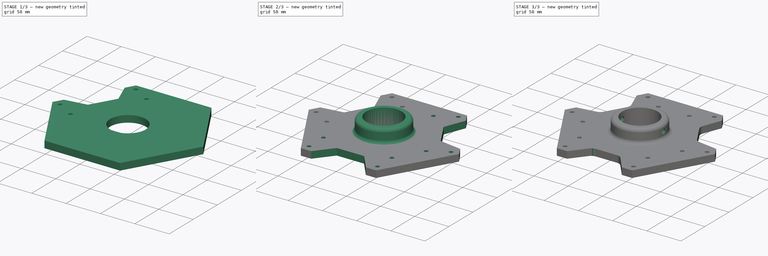
[diagram: build sequence overview — one tinted view per stage of 3, left to right]
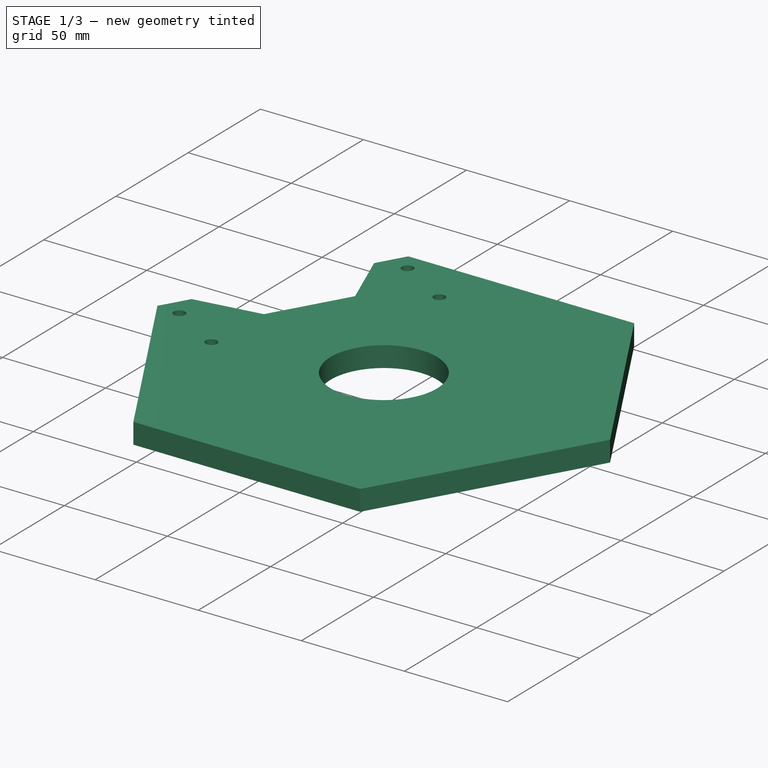
[diagram: stage 1 of 3 — iso view after this stage's code; geometry added in this stage tinted green]
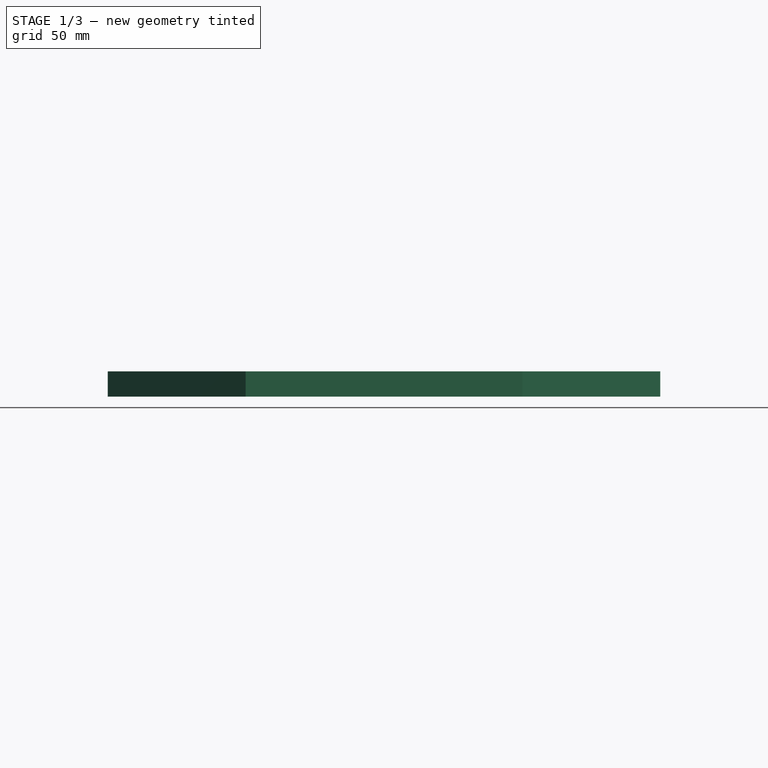
[diagram: stage 1 of 3 — front view after this stage's code; geometry added in this stage tinted green]
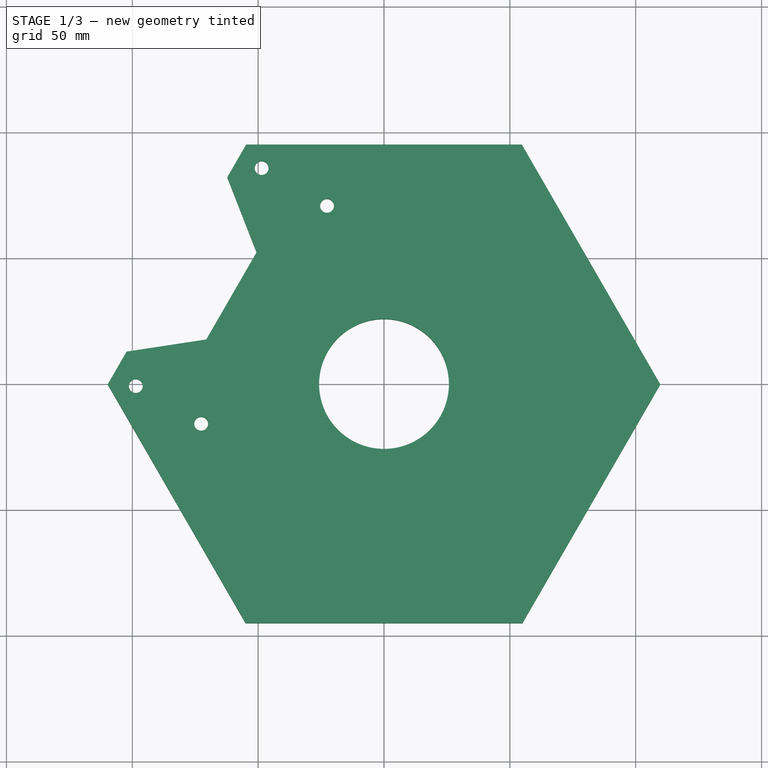
[diagram: stage 1 of 3 — top view after this stage's code; geometry added in this stage tinted green]
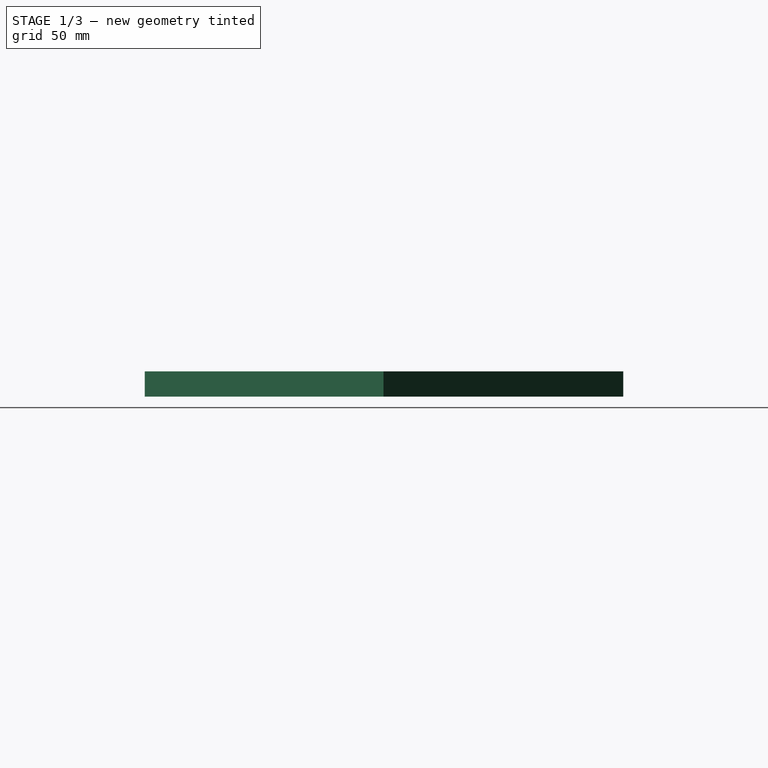
[diagram: stage 1 of 3 — right view after this stage's code; geometry added in this stage tinted green]
FCSTD DOCUMENT  (FreeCAD 1.0R38641 +468 (Git))
Label: 03basetriangle
License: All rights reserved
LicenseURL: https://en.wikipedia.org/wiki/All_rights_reserved
objects: Sketcher::SketchObject×4, PartDesign::Pad×2, PartDesign::Pocket×2, PartDesign::Plane×2, PartDesign::Fillet×2, Spreadsheet::Sheet×1, PartDesign::PolarPattern×1, PartDesign::Body×1
note: 31 computed .brp shape members not serialized (recipe doc carries the construction recipe); baked Part::Feature solids carry a one-line shape summary decoded from their .brp

FEATURE [Spreadsheet::Sheet] Spreadsheet  label="ss"
  cells = A1='deltabot calculation - values for kinetic | https://www.marginallyclever.com/other/samples/fk-ik-test.html; A3='Base radius (f); B3(f)=300; D3='vslot_length-28.5!; E3==<<base_triangle_sketch>>.Constraints.vslot_length; F3='28.5 to add (halt nema 23); A4='Bicep length (rf); B4(rf)=200; C4='!= tube actual length; E4(vslot_length)==179.29 + 28.5; A5='Bicep inerdia (od_rf); B5(od_rf)=40; A6='Bicep outerdia (id_rf); B6(id_rf)=36; A7='Bicep end length (end_rf); B7(end_rf)=25; A11='Forearm length (re); B11(re)=400; A12='End Effector radius (e); A13='Base to floor distance (b); A14='wrist(tool); B14(wrist)=90
FEATURE [Sketcher::SketchObject] Sketch011  label="base_triangle_sketch"
  ArcFitTolerance = 1e-06
  AttachmentSupport = -> [XY_Plane012]
  FullyConstrained = false
  MakeInternals = false
  MapMode = 5
  sketch-geometry (19):
    g0: Circle [constr] CenterX=0 CenterY=0 CenterZ=0 NormalX=0 NormalY=0 NormalZ=1 AngleXU=0 Radius=300
    g1: Circle [constr] CenterX=0 CenterY=0 CenterZ=0 NormalX=0 NormalY=0 NormalZ=1 AngleXU=0 Radius=110
    g2: LineSegment [constr] StartX=0 StartY=190 StartZ=0 EndX=-164.545 EndY=-95 EndZ=0
    g3: LineSegment [constr] StartX=-164.545 StartY=-95 StartZ=0 EndX=164.545 EndY=-95 EndZ=0
    g4: LineSegment [constr] StartX=164.545 StartY=-95 StartZ=0 EndX=0 EndY=190 EndZ=0
    g5: Circle [constr] CenterX=0 CenterY=0 CenterZ=0 NormalX=0 NormalY=0 NormalZ=1 AngleXU=0 Radius=190
    g6: LineSegment [constr] StartX=0 StartY=110 StartZ=0 EndX=195.089 EndY=-227.904 EndZ=0
    g7: LineSegment [constr] StartX=95.2628 StartY=-55 StartZ=0 EndX=-294.915 EndY=-55 EndZ=0
    g8: LineSegment [constr] StartX=-93.3888 StartY=-58.1251 StartZ=0 EndX=96.6541 EndY=284.003 EndZ=0
    g9: LineSegment StartX=-54.7724 StartY=95.1314 StartZ=0 EndX=-109.772 EndY=-0.131397 EndZ=0
    g10: LineSegment StartX=-55 StartY=-95 StartZ=0 EndX=55 EndY=-95 EndZ=0
    g11: LineSegment StartX=54.7724 StartY=95.1314 StartZ=0 EndX=109.772 EndY=-0.131397 EndZ=0
    g12: LineSegment [constr] StartX=95.2628 StartY=-55 StartZ=0 EndX=129.904 EndY=-35 EndZ=0
    g13: Circle CenterX=0 CenterY=0 CenterZ=0 NormalX=0 NormalY=0 NormalZ=1 AngleXU=0 Radius=25.8
    g14: LineSegment StartX=-54.7724 StartY=95.1314 StartZ=0 EndX=54.7724 EndY=95.1314 EndZ=0
    g15: LineSegment StartX=55 StartY=-95 StartZ=0 EndX=109.772 EndY=-0.131397 EndZ=0
    g16: LineSegment StartX=-55 StartY=-95 StartZ=0 EndX=-109.772 EndY=-0.131397 EndZ=0
    g17: GeomPoint X=8.58439 Y=95.1314 Z=0
    g18: GeomPoint X=86.6784 Y=-40.1314 Z=0
  constraints (53):
    c: Coincident(g0,g-1)
    c: PointOnObject(g8,g1)
    c: PointOnObject(g7,g1)
    c: PointOnObject(g6,g1)
    c: Coincident(g1,g0)
    c: Coincident(g2,g3)
    c: Coincident(g3,g4)
    c: Coincident(g4,g2)
    c: Equal(g2,g3)
    c: Equal(g2,g4)
    c: PointOnObject(g2,g5)
    c: PointOnObject(g3,g5)
    c: PointOnObject(g4,g5)
    c: Coincident(g5,g0)
    c: PointOnObject(g6,g-2)
    c: PointOnObject(g2,g-2)
    c: PointOnObject(g6,g0)
    c: PointOnObject(g7,g6)
    c: PointOnObject(g7,g0)
    c: Horizontal(g7)
    c: PointOnObject(g6,g8)
    c: PointOnObject(g8,g0)
    c: Distance(g6,g6) = 390.178  'vslot_length'
    c: PointOnObject(g9,g2)
    c: PointOnObject(g11,g4)
    c: PointOnObject(g11,g4)
    c: PointOnObject(g10,g3)
    c: PointOnObject(g10,g3)
    c: PointOnObject(g9,g2)
    c: Equal(g10,g9)
    c: Equal(g9,g11)
    c: Coincident(g12,g7)
    c: PointOnObject(g12,g4)
    c: Perpendicular(g6,g12)
    c: Distance(g12,g12) = 40
    c: Coincident(g13,g0)
    c: Diameter(g13) = 51.6
    c: Block(g6)
    c: Diameter(g1) = 220
    c: Coincident(g9,g14)
    c: Coincident(g14,g11)
    c: Horizontal(g14)
    c: Coincident(g10,g15)
    c: Coincident(g15,g11)
    c: Coincident(g10,g16)
    c: Coincident(g16,g9)
    c: Equal(g15,g14)
    c: Equal(g14,g16)
    c: PointOnObject(g17,g14)
    c: PointOnObject(g18,g15)
    c: PointOnObject(g18,g6)
    c: PointOnObject(g17,g6)
    c: Distance(g11,g11) = 110
FEATURE [PartDesign::Pad] Pad007
  Direction = (0,0,1)
  Length = 10
  Length2 = 10
  Profile = -> Sketch011
  ReferenceAxis = -> Sketch011 [N_Axis]
  Refine = true
  Suppressed = false
  Type = 0
FEATURE [Sketcher::SketchObject] Sketch012
  ArcFitTolerance = 1e-06
  AttachmentSupport = -> [XY_Plane012]
  ExternalGeometry = -> [Pad007]
  FullyConstrained = true
  MakeInternals = false
  MapMode = 5
  sketch-geometry (17):
    g0: GeomPoint X=0 Y=25.8 Z=0
    g1: Circle CenterX=-48.6122 CenterY=85.8013 CenterZ=0 NormalX=0 NormalY=0 NormalZ=1 AngleXU=0 Radius=2.75
    g2: Circle CenterX=-98.6122 CenterY=-0.80127 CenterZ=0 NormalX=0 NormalY=0 NormalZ=1 AngleXU=0 Radius=2.75
    g3: Circle CenterX=-22.6314 CenterY=70.8013 CenterZ=0 NormalX=0 NormalY=0 NormalZ=1 AngleXU=0 Radius=2.75
    g4: Circle CenterX=-72.6314 CenterY=-15.8013 CenterZ=0 NormalX=0 NormalY=0 NormalZ=1 AngleXU=0 Radius=2.75
    g5: LineSegment [constr] StartX=-57.2724 StartY=90.8013 StartZ=0 EndX=-22.6314 EndY=70.8013 EndZ=0
    g6: LineSegment [constr] StartX=-107.272 StartY=4.19873 StartZ=0 EndX=-72.6314 EndY=-15.8013 EndZ=0
    g7: LineSegment [constr] StartX=-48.6122 StartY=85.8013 StartZ=0 EndX=-98.6122 EndY=-0.80127 EndZ=0
    g8: LineSegment [constr] StartX=-22.6314 StartY=70.8013 StartZ=0 EndX=-72.6314 EndY=-15.8013 EndZ=0
    g9: LineSegment StartX=-62.2724 StartY=82.141 StartZ=0 EndX=-50.6218 EndY=52.3205 EndZ=0
    g10: LineSegment StartX=-70.6218 StartY=17.6795 StartZ=0 EndX=-102.272 EndY=12.859 EndZ=0
    g11: LineSegment [constr] StartX=-57.2724 StartY=90.8013 StartZ=0 EndX=-62.2724 EndY=82.141 EndZ=0
    g12: LineSegment [constr] StartX=-102.272 StartY=12.859 StartZ=0 EndX=-107.272 EndY=4.19873 EndZ=0
    g13: LineSegment StartX=-62.2724 StartY=82.141 StartZ=0 EndX=-102.272 EndY=12.859 EndZ=0
    g14: LineSegment [constr] StartX=-82.2724 StartY=47.5 StartZ=0 EndX=0 EndY=0 EndZ=0
    g15: LineSegment StartX=-70.6218 StartY=17.6795 StartZ=0 EndX=-50.6218 EndY=52.3205 EndZ=0
    g16: GeomPoint X=-60.6218 Y=35 Z=0
  constraints (43):
    c: PointOnObject(g0,g-3)
    c: PointOnObject(g0,g-2)
    c: Equal(g1,g2)
    c: Equal(g2,g4)
    c: Equal(g4,g3)
    c: Diameter(g1) = 5.5
    c: PointOnObject(g5,g-5)
    c: PointOnObject(g6,g-5)
    c: Perpendicular(g6,g-5)
    c: Perpendicular(g-5,g5)
    c: PointOnObject(g1,g5)
    c: PointOnObject(g2,g6)
    c: Coincident(g7,g2)
    c: Coincident(g8,g3)
    c: Coincident(g8,g4)
    c: Parallel(g7,g8)
    c: Coincident(g1,g7)
    c: Distance(g1,g5) = 10
    c: Coincident(g5,g3)
    c: Coincident(g4,g6)
    c: Parallel(g7,g-5)
    c: Distance(g1,g3) = 30
    c: PointOnObject(g9,g-5)
    c: PointOnObject(g10,g-5)
    c: Coincident(g11,g5)
    c: Coincident(g11,g9)
    c: Coincident(g12,g10)
    c: Coincident(g12,g6)
    c: Equal(g12,g11)
    c: Coincident(g9,g13)
    c: Coincident(g13,g10)
    c: Symmetric(g2,g1,g14)
    c: Symmetric(g10,g9,g14)
    c: Coincident(g14,g-1)
    c: Coincident(g10,g15)
    c: Coincident(g15,g9)
    c: Distance(g8,g8) = 100
    c: Distance(g13,g13) = 80
    c: Distance(g15,g15) = 40
    c: PointOnObject(g14,g13)
    c: PointOnObject(g16,g15)
    c: PointOnObject(g16,g14)
    c: Distance(g16,g14) = 25
FEATURE [PartDesign::Pocket] Pocket003
  BaseFeature = -> Pad007
  Direction = (0,0,-1)
  Length = 5
  Length2 = 5
  Profile = -> Sketch012
  ReferenceAxis = -> Sketch012 [N_Axis]
  Refine = true
  Reversed = true
  Suppressed = false
  Type = 1
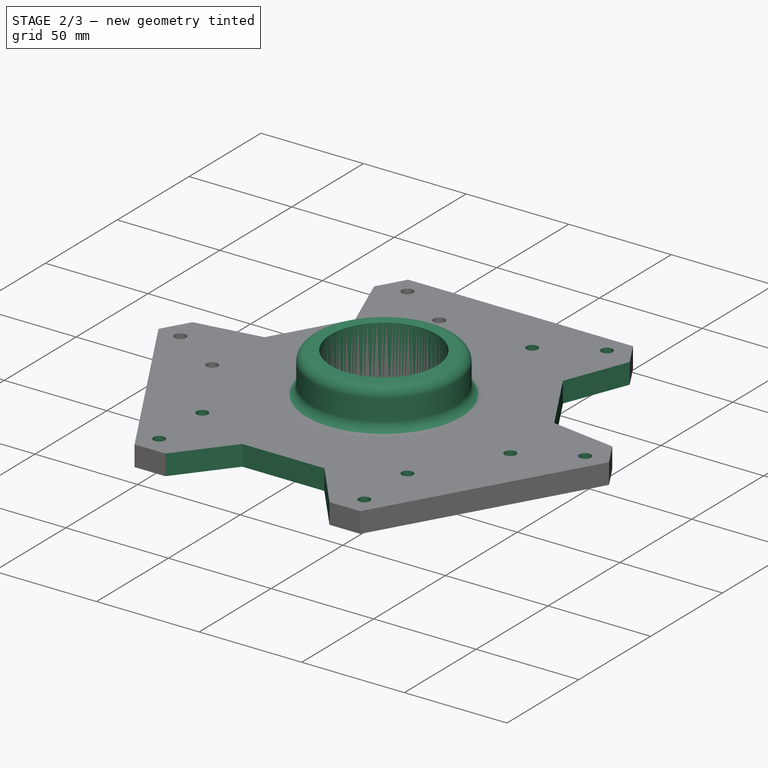
[diagram: stage 2 of 3 — iso view after this stage's code; geometry added in this stage tinted green]
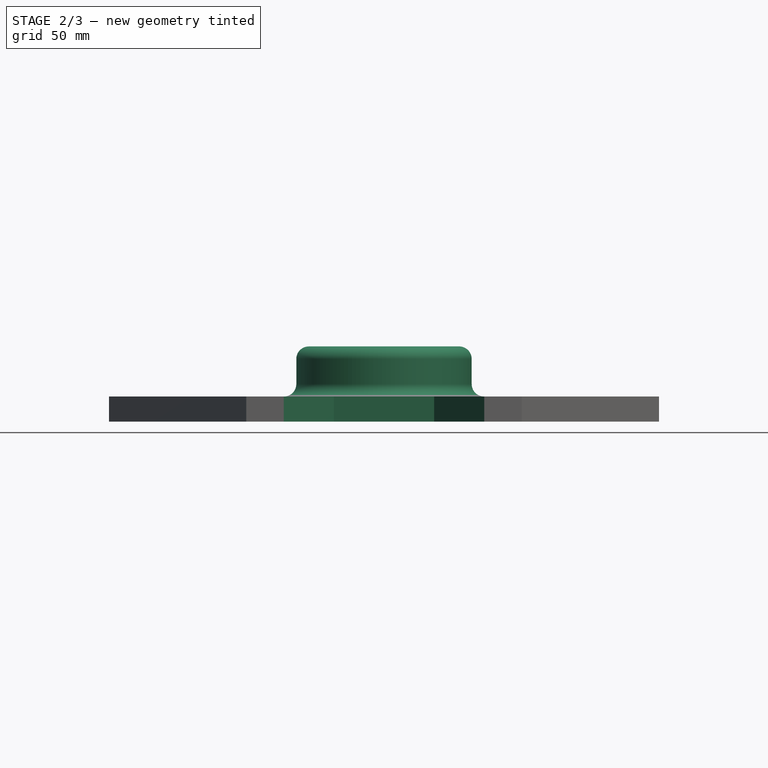
[diagram: stage 2 of 3 — front view after this stage's code; geometry added in this stage tinted green]
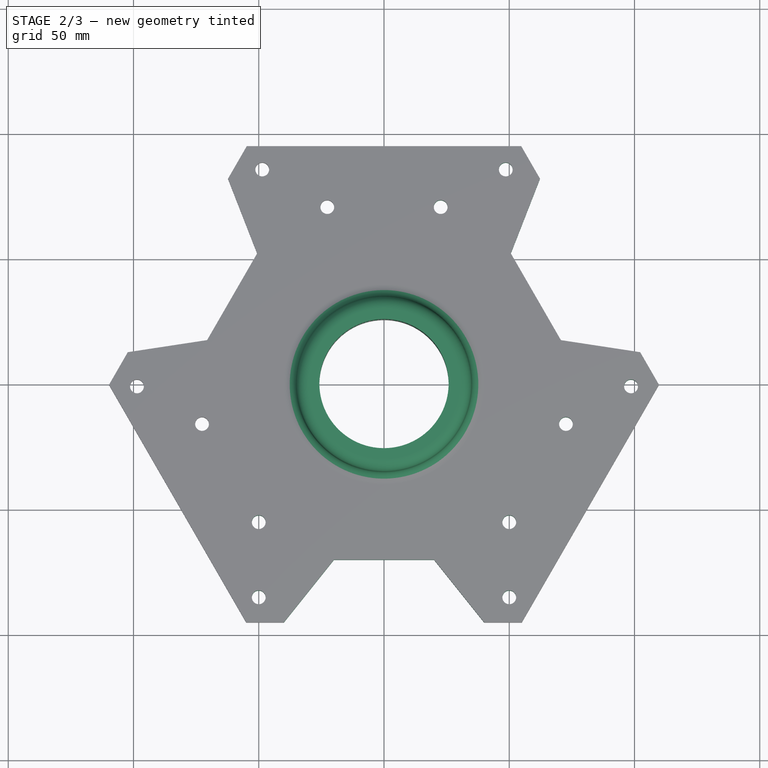
[diagram: stage 2 of 3 — top view after this stage's code; geometry added in this stage tinted green]
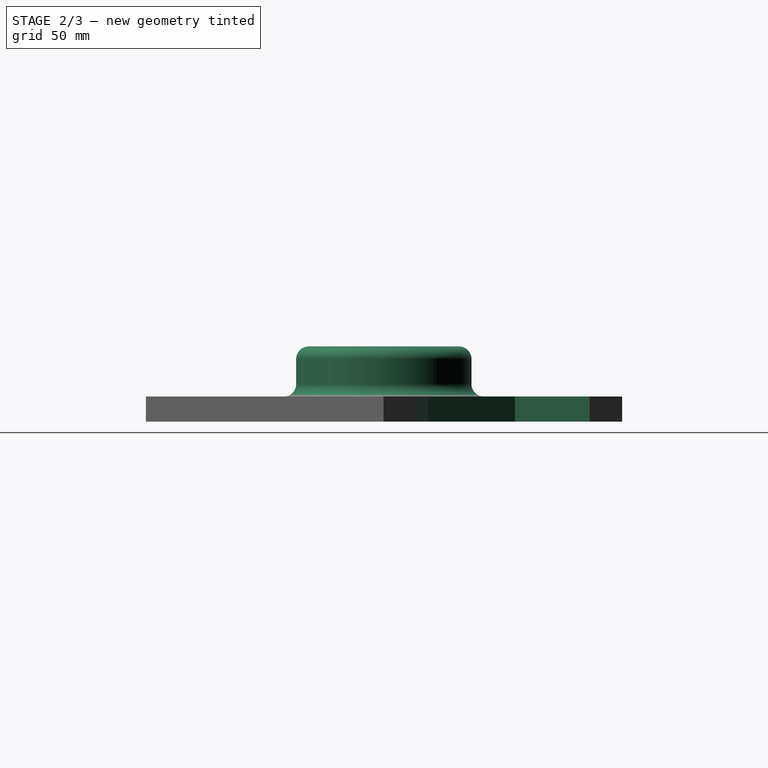
[diagram: stage 2 of 3 — right view after this stage's code; geometry added in this stage tinted green]
FEATURE [PartDesign::PolarPattern] PolarPattern
  Angle = 360
  Axis = -> Sketch012 [N_Axis]
  BaseFeature = -> Pocket003
  Mode = 0
  Occurrences = 3
  Offset = 120
  Originals = -> [Pocket003]
  Refine = true
  Suppressed = false
  TransformMode = 0
FEATURE [PartDesign::Plane] DatumPlane
  AttachmentSupport = -> [PolarPattern]
  Length = 260.407
  MapMode = 5
  Placement = pos=(0,0,10) rot=(0,0,1;0rad)
  ResizeMode = 0
  Width = 230.993
FEATURE [Sketcher::SketchObject] Sketch
  ArcFitTolerance = 1e-06
  AttachmentSupport = -> [PolarPattern]
  ExternalGeometry = -> [PolarPattern]
  FullyConstrained = false
  MakeInternals = false
  MapMode = 5
  Placement = pos=(0,0,10) rot=(0,0,1;0rad)
  sketch-geometry (2):
    g0: Circle CenterX=0 CenterY=0 CenterZ=0 NormalX=0 NormalY=0 NormalZ=1 AngleXU=0 Radius=35
    g1: Circle CenterX=0 CenterY=0 CenterZ=0 NormalX=0 NormalY=0 NormalZ=1 AngleXU=0 Radius=25.8
  constraints (3):
    c: Diameter(g0) = 70
    c: Coincident(g1,g0)
    c: Diameter(g1) = 51.6
FEATURE [PartDesign::Pad] Pad
  BaseFeature = -> PolarPattern
  Direction = (0,0,1)
  Length = 20
  Length2 = 10
  Profile = -> Sketch
  ReferenceAxis = -> Sketch [N_Axis]
  Refine = true
  Suppressed = false
  Type = 0
FEATURE [PartDesign::Fillet] Fillet
  Base = -> Pad [Edge58,Edge94]
  BaseFeature = -> Pad
  Radius = 5
  Refine = true
  SupportTransform = false
  Suppressed = false
  UseAllEdges = false
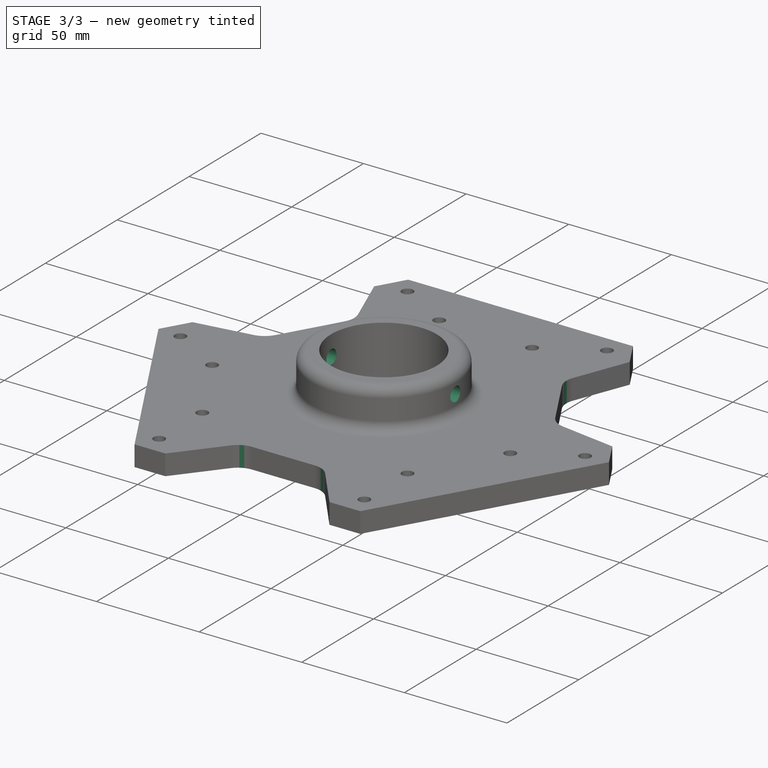
[diagram: stage 3 of 3 — iso view after this stage's code; geometry added in this stage tinted green]
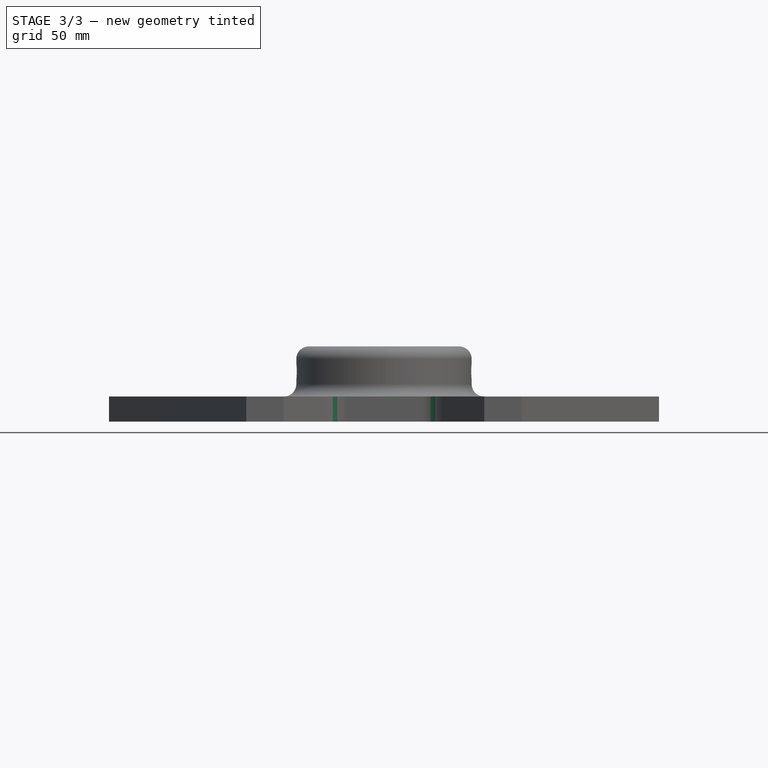
[diagram: stage 3 of 3 — front view after this stage's code; geometry added in this stage tinted green]
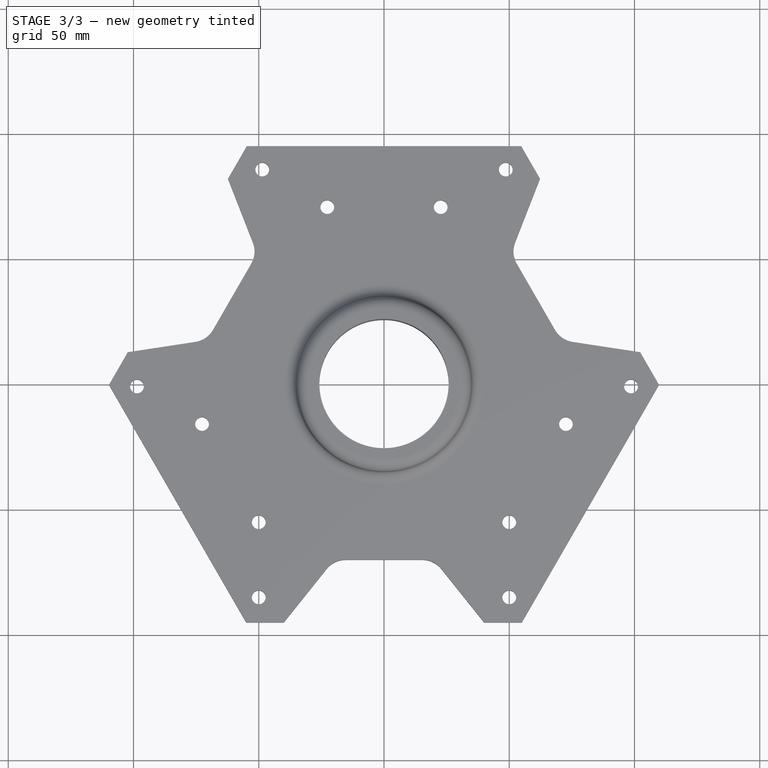
[diagram: stage 3 of 3 — top view after this stage's code; geometry added in this stage tinted green]
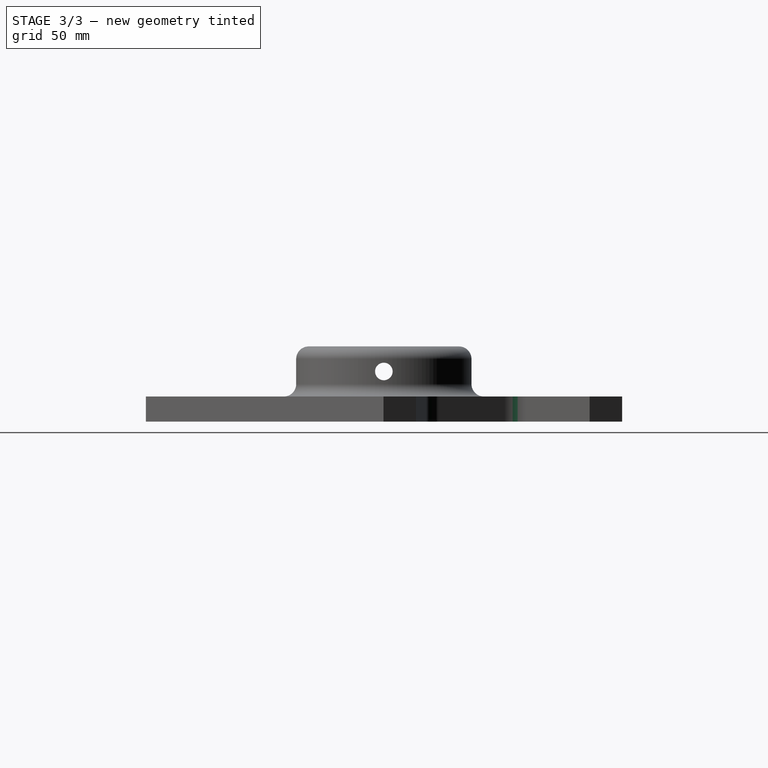
[diagram: stage 3 of 3 — right view after this stage's code; geometry added in this stage tinted green]
FEATURE [PartDesign::Plane] DatumPlane001
  AttachmentOffset = pos=(0,0,0) rot=(0,1,0;1.5708rad)
  AttachmentSupport = -> [Fillet]
  Length = 75.4521
  MapMode = 45
  Placement = pos=(-3.6e-15,-4e-16,15) rot=(0,1,0;1.5708rad)
  ResizeMode = 0
  Width = 210.584
FEATURE [Sketcher::SketchObject] Sketch013
  ArcFitTolerance = 1e-06
  AttachmentSupport = -> [DatumPlane001]
  ExternalGeometry = -> [Fillet]
  FullyConstrained = true
  MakeInternals = false
  MapMode = 5
  Placement = pos=(-3.6e-15,-4e-16,15) rot=(0,1,0;1.5708rad)
  sketch-geometry (1):
    g0: Circle CenterX=-5 CenterY=-7e-16 CenterZ=0 NormalX=0 NormalY=0 NormalZ=1 AngleXU=0 Radius=3.5
  constraints (2):
    c: Diameter(g0) = 7
    c: Symmetric(g-3,g-4,g0)
FEATURE [PartDesign::Pocket] Pocket
  BaseFeature = -> Fillet
  Direction = (-1,0,-2e-16)
  Length = 5
  Length2 = 5
  Midplane = true
  Profile = -> Sketch013
  ReferenceAxis = -> Sketch013 [N_Axis]
  Refine = true
  Suppressed = false
  Type = 1
FEATURE [PartDesign::Fillet] Fillet001
  Base = -> Pocket [Edge68,Edge66,Edge44,Edge48,Edge42,Edge46]
  BaseFeature = -> Pocket
  Radius = 10
  Refine = true
  SupportTransform = false
  Suppressed = false
  UseAllEdges = false
FEATURE [PartDesign::Body] Body004  label="base_triangle"
  AllowCompound = false
  Group = -> [Sketch011,Pad007,Sketch012,Pocket003,PolarPattern,DatumPlane,Sketch,Pad,Fillet,DatumPlane001,Sketch013,Pocket,Fillet001]
  Origin = -> Origin012
  Tip = -> Fillet001
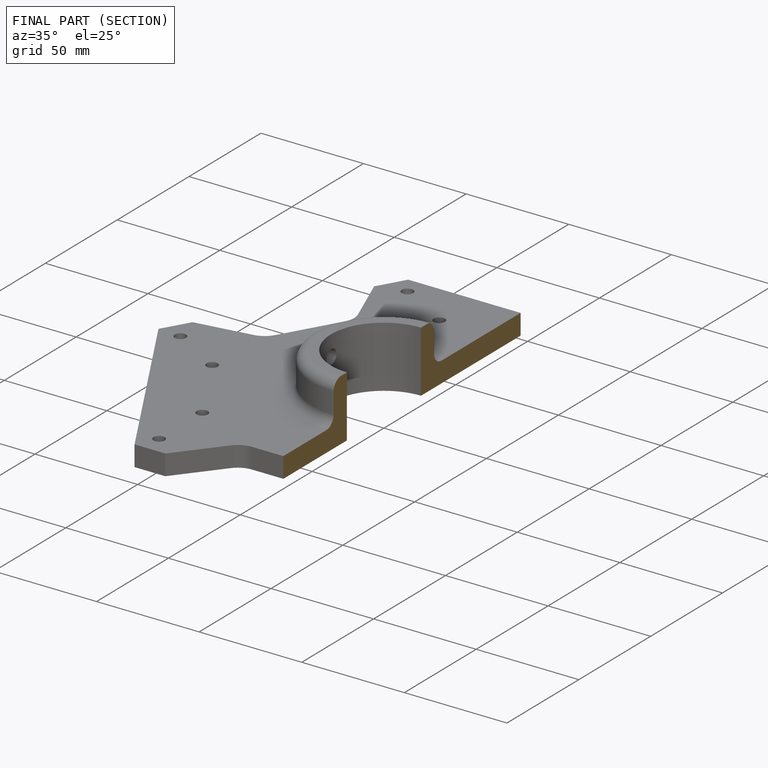
[diagram: finished part — half-section view (interior)]
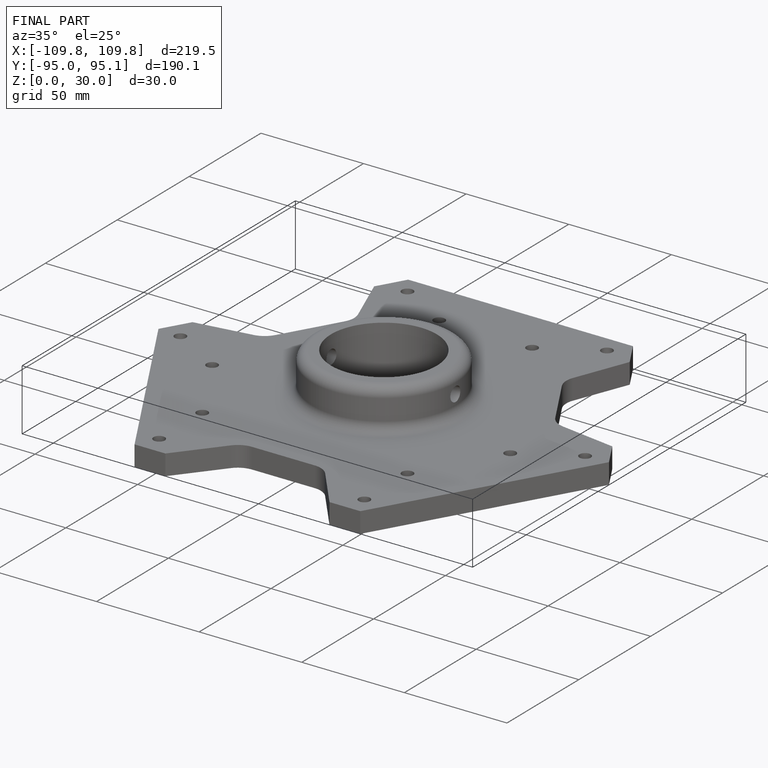
[diagram: finished part — iso view with bounding-box wireframe]
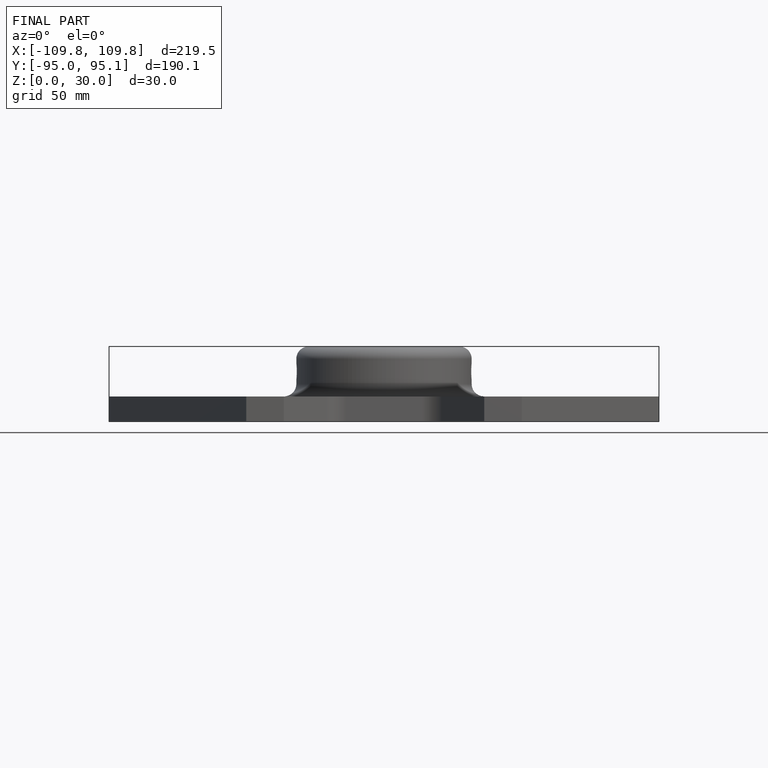
[diagram: finished part — front view with bounding-box wireframe]
